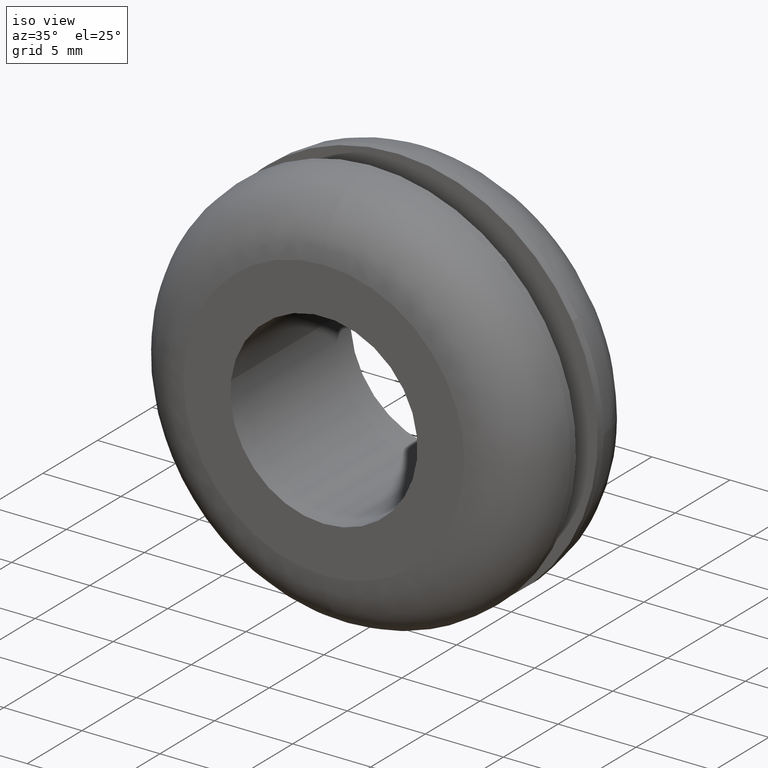
[diagram: clean part render]
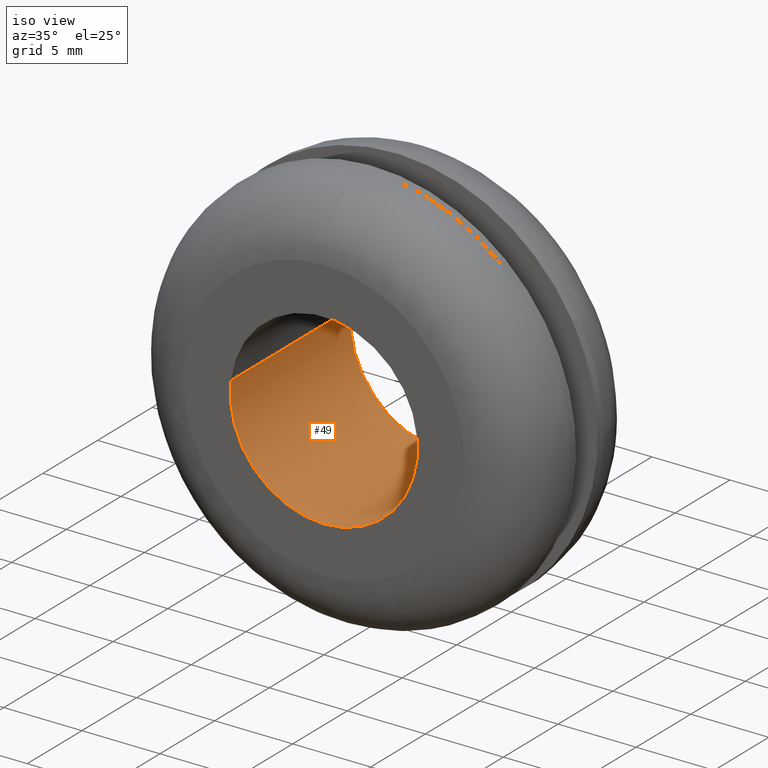
[diagram: same view with one face highlighted and labeled with its STEP entity id]
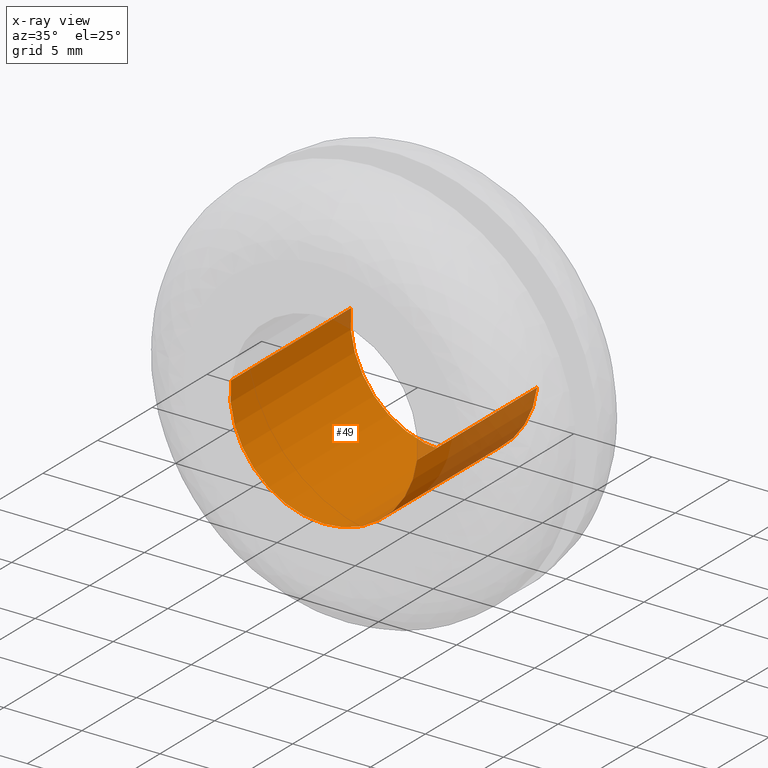
[diagram: x-ray of the same camera — body ghosted, the highlighted face saturated]
A machine part, iso view. The second image highlights one B-rep face of the part: STEP entity #49.
The next image is the same camera in x-ray: the body ghosted, the highlighted face saturated — about 12% of this face is hidden behind the body in this view.
In plain terms, the highlighted cylindrical surface (partial cylindrical patch) has radius 6 mm, axis along (0, 1, 0).
Its self-contained STEP definition (entity closure, byte-faithful):
#49=ADVANCED_FACE('',(#151),#150,.F.);
#150=CYLINDRICAL_SURFACE('',#272,6.00000000000E+000);
#151=FACE_OUTER_BOUND('',#273,.T.);
#269=CARTESIAN_POINT('',(1.74235465681E-014,1.12750000000E+001,1.56806256335E-013));
#270=DIRECTION('',(2.95312682859E-015,1.00000000000E+000,2.73525944060E-014));
#271=DIRECTION('',(-9.93009526364E-001,-2.96059473234E-016,1.18034234657E-001));
#272=AXIS2_PLACEMENT_3D('',#269,#270,#271);
#273=EDGE_LOOP('',(#438,#439,#440,#441,#442,#443));
#438=ORIENTED_EDGE('',*,*,#501,.F.);
#439=ORIENTED_EDGE('',*,*,#503,.F.);
#440=ORIENTED_EDGE('',*,*,#519,.F.);
#441=ORIENTED_EDGE('',*,*,#506,.T.);
#442=ORIENTED_EDGE('',*,*,#508,.T.);
#443=ORIENTED_EDGE('',*,*,#520,.T.);
#501=EDGE_CURVE('',#640,#641,#642,.T.);
#503=EDGE_CURVE('',#648,#640,#655,.T.);
#506=EDGE_CURVE('',#675,#676,#677,.T.);
#508=EDGE_CURVE('',#676,#683,#690,.T.);
#519=EDGE_CURVE('',#675,#648,#762,.T.);
#520=EDGE_CURVE('',#683,#641,#768,.T.);
#640=VERTEX_POINT('',#941);
#641=VERTEX_POINT('',#942);
#642=CIRCLE('',#946,5.99999999999E+000);
#648=VERTEX_POINT('',#947);
#655=CIRCLE('',#955,5.99999999999E+000);
#675=VERTEX_POINT('',#966);
#676=VERTEX_POINT('',#967);
#677=CIRCLE('',#971,5.99999999999E+000);
#683=VERTEX_POINT('',#972);
#690=CIRCLE('',#980,5.99999999999E+000);
#762=(BOUNDED_CURVE() B_SPLINE_CURVE(1,(#1019,#1020),.UNSPECIFIED.,.F.,.F.) B_SPLINE_CURVE_WITH_KNOTS((2,2),(8.33333343261E-002,9.16666667006E-001),.UNSPECIFIED.) CURVE() GEOMETRIC_REPRESENTATION_ITEM() RATIONAL_B_SPLINE_CURVE((1.00000000000E+000,1.00000000000E+000)) REPRESENTATION_ITEM('') );
#768=(BOUNDED_CURVE() B_SPLINE_CURVE(1,(#1021,#1022),.UNSPECIFIED.,.F.,.F.) B_SPLINE_CURVE_WITH_KNOTS((2,2),(8.33333333333E-002,9.16666666667E-001),.UNSPECIFIED.) CURVE() GEOMETRIC_REPRESENTATION_ITEM() RATIONAL_B_SPLINE_CURVE((7.50000000000E-001,7.50000000000E-001)) REPRESENTATION_ITEM('') );
#941=CARTESIAN_POINT('',(-9.99200722163E-016,1.10000000000E+001,-5.99999999997E+000));
#942=CARTESIAN_POINT('',(5.95793466543E+000,1.10000000000E+001,-7.09235167212E-001));
#943=CARTESIAN_POINT('',(6.31272811802E-012,1.10000000000E+001,1.38862255028E-011));
#944=DIRECTION('',(3.31333926830E-015,-1.00000000000E+000,1.78420386060E-014));
#945=DIRECTION('',(-1.05190856026E-012,-1.78420386060E-014,-1.00000000000E+000));
#946=AXIS2_PLACEMENT_3D('',#943,#944,#945);
#947=CARTESIAN_POINT('',(-5.95805741715E+000,1.10000000000E+001,7.08203229112E-001));
#952=CARTESIAN_POINT('',(6.31272811802E-012,1.10000000000E+001,1.38862255028E-011));
#953=DIRECTION('',(3.31333926830E-015,-1.00000000000E+000,1.78420386060E-014));
#954=DIRECTION('',(-1.05190856026E-012,-1.78420386060E-014,-1.00000000000E+000));
#955=AXIS2_PLACEMENT_3D('',#952,#953,#954);
#966=CARTESIAN_POINT('',(-5.95805741715E+000,-2.55516372178E-015,7.08203229111E-001));
#967=CARTESIAN_POINT('',(4.44089209850E-016,-1.43333726812E-014,-5.99999999997E+000));
#968=CARTESIAN_POINT('',(6.15818507299E-012,-2.19199826353E-015,1.35496058817E-011));
#969=DIRECTION('',(3.01483983879E-016,-1.00000000000E+000,2.02356240295E-015));
#970=DIRECTION('',(-1.02591546369E-012,-2.02356240295E-015,-1.00000000000E+000));
#971=AXIS2_PLACEMENT_3D('',#968,#969,#970);
#972=CARTESIAN_POINT('',(5.95793466543E+000,-1.83095800416E-015,-7.09235167212E-001));
#977=CARTESIAN_POINT('',(6.15818507299E-012,-2.19199826353E-015,1.35496058817E-011));
#978=DIRECTION('',(3.01483983879E-016,-1.00000000000E+000,2.02356240295E-015));
#979=DIRECTION('',(-1.02591546369E-012,-2.02356240295E-015,-1.00000000000E+000));
#980=AXIS2_PLACEMENT_3D('',#977,#978,#979);
#1019=CARTESIAN_POINT('',(-5.95805715818E+000,1.31040081008E-008,7.08205407941E-001));
#1020=CARTESIAN_POINT('',(-5.95805715818E+000,1.10000000045E+001,7.08205407941E-001));
#1021=CARTESIAN_POINT('',(5.95805715818E+000,-5.41788836017E-014,-7.08205407941E-001));
#1022=CARTESIAN_POINT('',(5.95805715818E+000,1.10000000000E+001,-7.08205407941E-001));